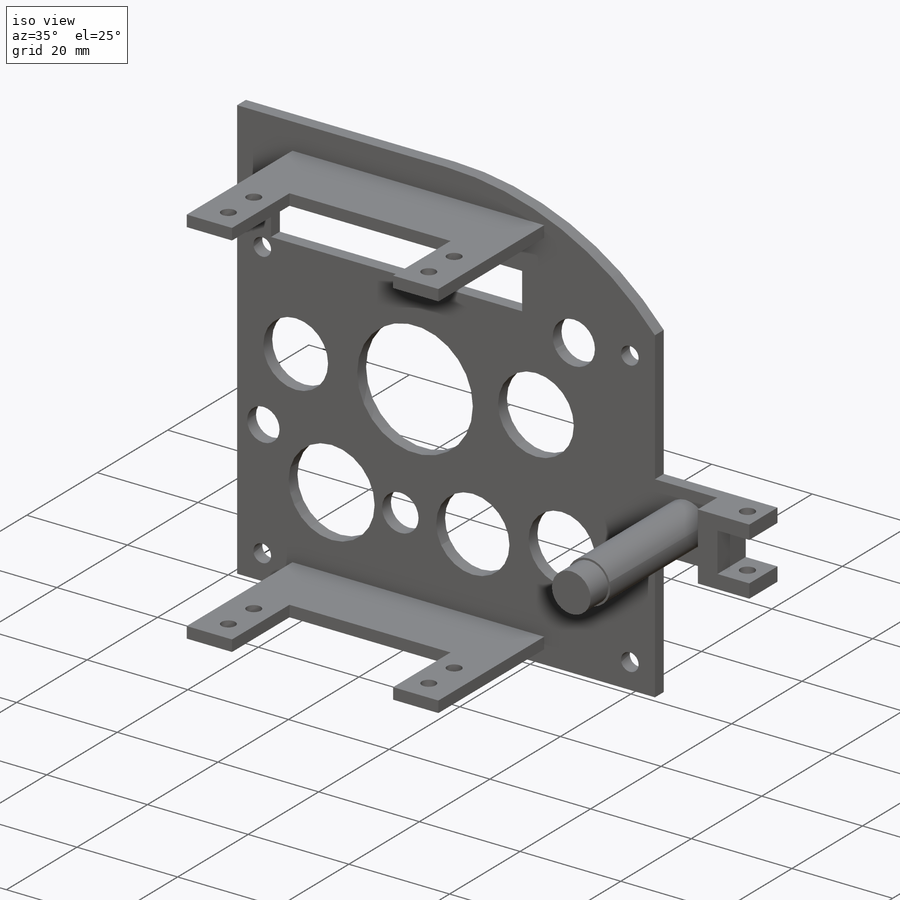
[diagram: iso view]
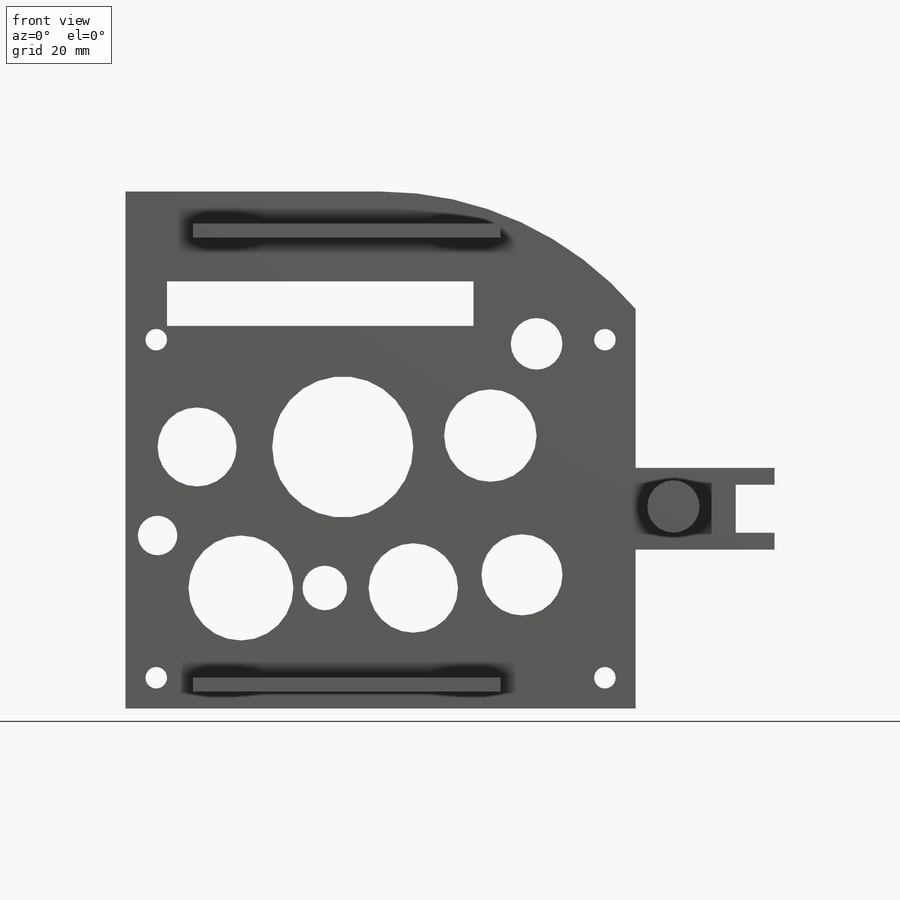
[diagram: front view]
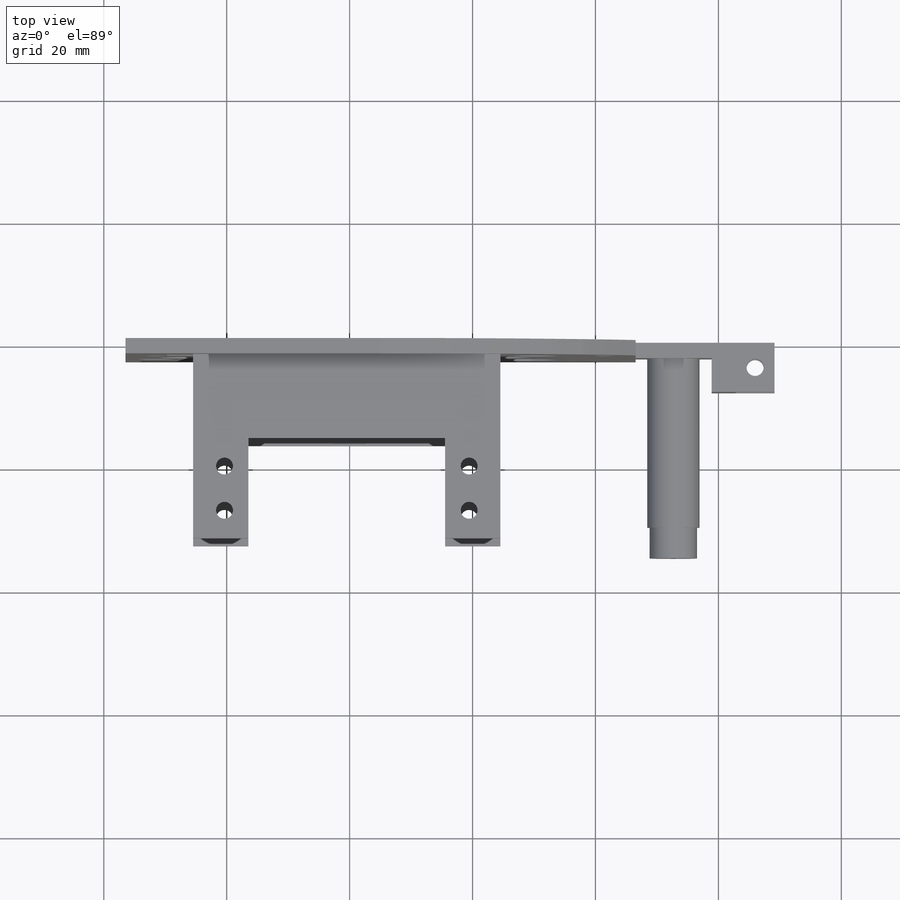
[diagram: top view]
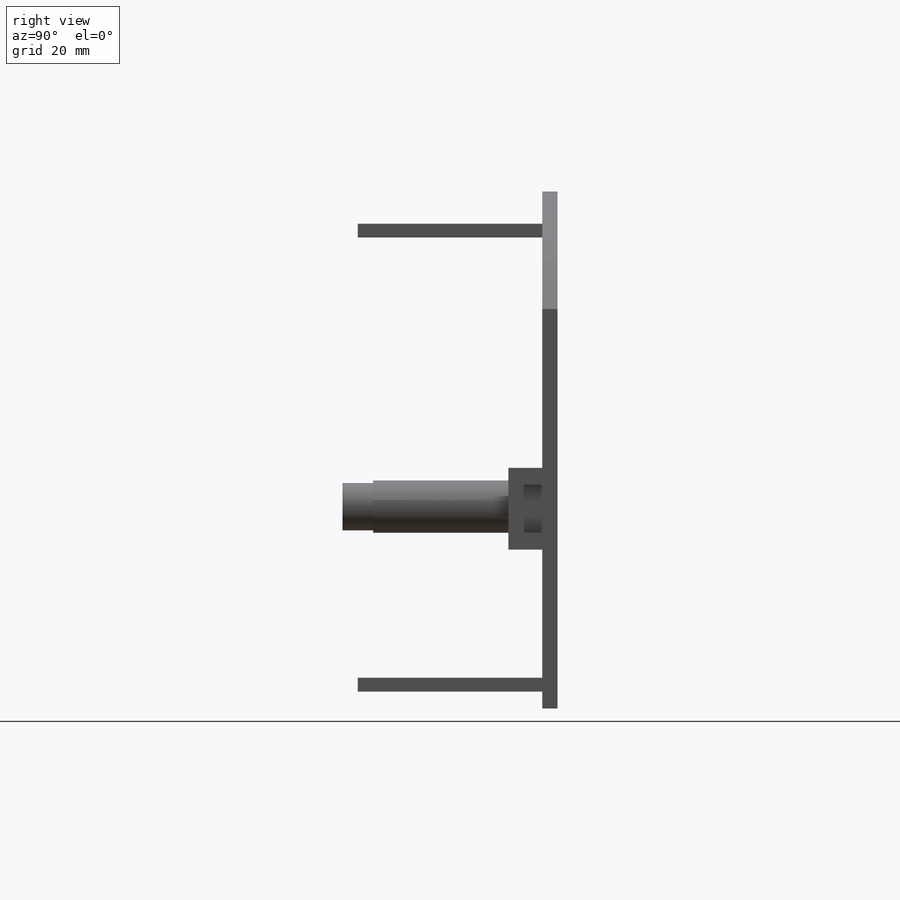
[diagram: right view]
SOLIDWORKS PART (.sldprt)
format: sldprt  version: not decoded by parser v0  size: 371,200 bytes
history: native  units: mm
features: sketch x9, extrude x5, cut_extrude x4, material x1 (+11 scaffold rows collapsed)
feature tree (30):
  scaffold x11  (default folders/planes/origin — collapsed)
  material  "Material <not specified>"
  sketch  "Sketch1"  dims[c1.D3=3.5mm c1.D6=6.5mm c1.D1=65.0mm c1.D2=83.0mm c1.D4=5.0mm c1.D5=~5.000502mm c2.D5=90.0deg c3.D5=5.0mm c3.D6=~22.086175mm c3.D7=2.75mm c3.D8=2.75mm c4.D5=5.0mm]
  extrude  "Boss-Extrude1"  Depth=2.5mm
  sketch  "Sketch2"  dims[D1=8.5mm]
  sketch  "Sketch3"  dims[c1.D1=~2.028912mm c2.D1=90.0deg c3.D1=2.25mm c3.D2=50.0mm c3.D3=6.0mm c3.D4=10.75mm c3.D5=50.0mm c3.D6=2.25mm c4.D4=50.0mm c4.D7=7.25mm c4.D8=10.75mm c4.D9=7.5mm]
  cut_extrude  "Cut-Extrude1"  Depth=72.5mm
  extrude  "Boss-Extrude2"  [1 undecoded]
  sketch  "Sketch3<3>"  dims[D1=30.0mm]
  sketch  "Sketch6"  dims[D4=2.75mm D6=2.75mm D1=16.0mm D2=16.3mm D3=3.9mm D5=4.55mm D7=7.2mm]
  cut_extrude  "Cut-Extrude2"  [1 undecoded]
  extrude  "Boss-Extrude4"  Depth=27.5mm
  sketch  "Sketch7"  dims[D1=7.7mm]
  extrude  "Boss-Extrude5"  Depth=5mm
  sketch  "Sketch8"
  extrude  "Boss-Extrude6"  Depth=5.5mm
  sketch  "Sketch10"  dims[D1=2.8mm]
  cut_extrude  "Cut-Extrude3"  [1 undecoded]
  sketch  "Sketch11"
  cut_extrude  "Cut-Extrude4"  Depth=5.5mm
decode coverage: 13 of 18 modeling features carry decoded parameters
note: ~ marks probable driven/reference dimensions
note: 3 parameter values undecoded
summary: no parameter record found for 3 features
note: suppression state not decoded; provenance and decode notes live in map.json
